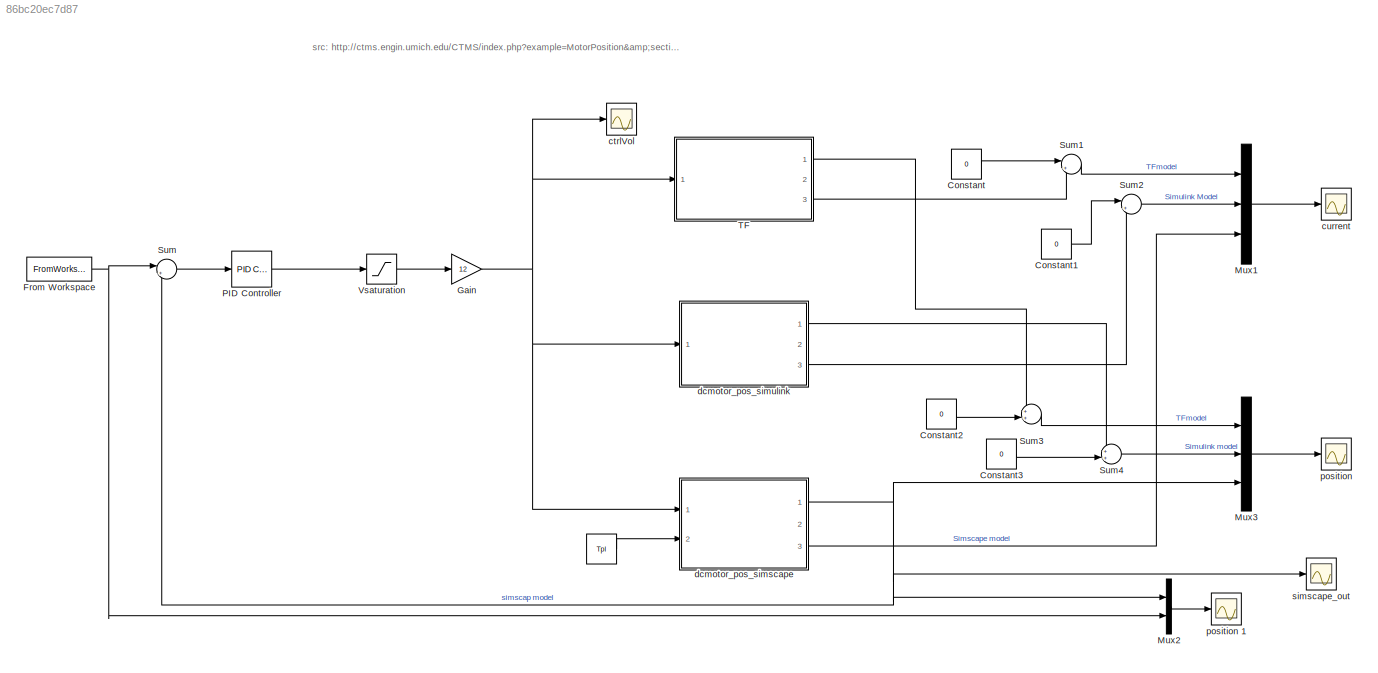
MODEL slx_86bc20ec7d87
KIND model
CONFIG AbsTol = auto
CONFIG EnableMultiTasking = off
CONFIG FixedStep = auto
CONFIG MaxStep = auto
CONFIG MinStep = auto
CONFIG RelTol = 1e-3
CONFIG SampleTimeConstraint = Unconstrained
CONFIG Solver = VariableStepAuto
CONFIG SolverName = VariableStepAuto
CONFIG StartTime = 0.0
CONFIG StopTime = 1
BLOCK [Constant]  
  Value = Tpl
BLOCK [Constant] Constant
  Value = 0
BLOCK [Constant] Constant1
  Value = 0
BLOCK [Constant] Constant2
  Value = 0
BLOCK [Constant] Constant3
  Value = 0
BLOCK [FromWorkspace] From Workspace
  OutDataTypeStr = double
  OutputAfterFinalValue = Holding final value
  SampleTime = 0
  VariableName = sim_in
  ZeroCross = on
BLOCK [Gain] Gain
  Gain = 12
  OutDataTypeStr = Inherit: Inherit via internal rule
  ParamDataTypeStr = Inherit: Inherit via internal rule
  SaturateOnIntegerOverflow = off
BLOCK [Mux] Mux1
  DisplayOption = bar
  Inputs = 3
  Ports = [3, 1]
BLOCK [Mux] Mux2
  DisplayOption = bar
  Inputs = 2
  Ports = [2, 1]
BLOCK [Mux] Mux3
  DisplayOption = bar
  Inputs = 3
  Ports = [3, 1]
BLOCK [Reference] PID Controller  REF=simulink/Continuous/PID Controller
  Ports = [1, 1]
  SourceBlock = simulink/Continuous/PID Controller
  SourceProductBaseCode = SL
  SourceProductName = Simulink
  SourceType = PID 1dof
BLOCK [Sum] Sum
  IconShape = round
  InputSameDT = off
  Inputs = |+-
  OutDataTypeStr = Inherit: Inherit via internal rule
  Ports = [2, 1]
  SaturateOnIntegerOverflow = off
BLOCK [Sum] Sum1
  IconShape = round
  InputSameDT = off
  Inputs = |++
  OutDataTypeStr = Inherit: Inherit via internal rule
  Ports = [2, 1]
  SaturateOnIntegerOverflow = off
BLOCK [Sum] Sum2
  IconShape = round
  InputSameDT = off
  Inputs = |++
  OutDataTypeStr = Inherit: Inherit via internal rule
  Ports = [2, 1]
  SaturateOnIntegerOverflow = off
BLOCK [Sum] Sum3
  IconShape = round
  InputSameDT = off
  Inputs = ++|
  OutDataTypeStr = Inherit: Inherit via internal rule
  Ports = [2, 1]
  SaturateOnIntegerOverflow = off
BLOCK [Sum] Sum4
  IconShape = round
  InputSameDT = off
  Inputs = ++|
  OutDataTypeStr = Inherit: Inherit via internal rule
  Ports = [2, 1]
  SaturateOnIntegerOverflow = off
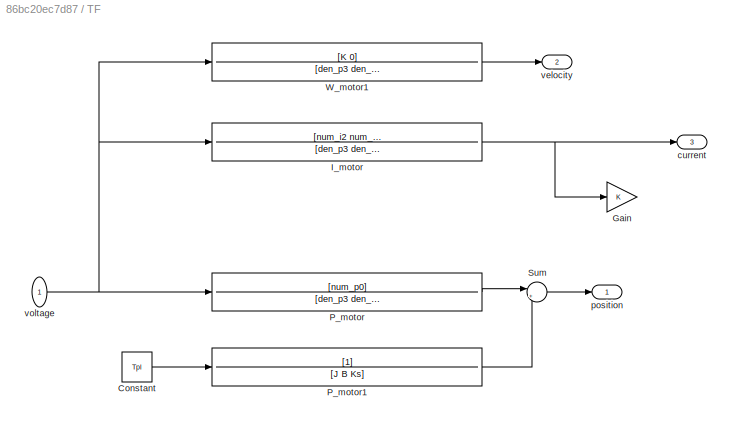
BLOCK [SubSystem] TF
  Ports = [1, 3]
  RequestExecContextInheritance = off
  Variant = off
BLOCK [Constant] TF/Constant
  Value = Tpl
BLOCK [Gain] TF/Gain
  Gain = K
  OutDataTypeStr = Inherit: Inherit via internal rule
  ParamDataTypeStr = Inherit: Inherit via internal rule
  SaturateOnIntegerOverflow = off
BLOCK [TransferFcn] TF/I_motor
  Denominator = [den_p3  den_p2  den_p1  den_p0]
  Numerator = [num_i2  num_i1  num_i0]
BLOCK [TransferFcn] TF/P_motor
  Denominator = [den_p3  den_p2  den_p1  den_p0]
  Numerator = [num_p0]
BLOCK [TransferFcn] TF/P_motor1
  Denominator = [J B Ks]
BLOCK [Sum] TF/Sum
  IconShape = round
  InputSameDT = off
  Inputs = |+-
  OutDataTypeStr = Inherit: Inherit via internal rule
  Ports = [2, 1]
  SaturateOnIntegerOverflow = off
BLOCK [TransferFcn] TF/W_motor1
  Denominator = [den_p3  den_p2  den_p1  den_p0]
  Numerator = [K 0]
BLOCK [Outport] TF/current
  IconDisplay = Port number
  Port = 3
BLOCK [Outport] TF/position 
  IconDisplay = Port number
BLOCK [Outport] TF/velocity
  IconDisplay = Port number
  Port = 2
BLOCK [Inport] TF/voltage
  IconDisplay = Port number
BLOCK [Saturate] Vsaturation
  InputPortMap = u0
  LowerLimit = 0
  Ports = [1, 1]
  UpperLimit = 1
BLOCK [Scope] ctrlVol
  NumInputPorts = 1
  Ports = [1]
  ScopeSpecificationString = Simulink.scopes.TimeScopeBlockCfg('CurrentConfiguration', extmgr.ConfigurationSet(extmgr.Configuration('Core','General UI',true),extmgr.Configuration('Core','Source UI',true),extmgr.Configuration('Sources','WiredSimulink',true,'DataLoggingVariableName','ctrl_vol','DataLogging',true,'DataLoggingSaveFormat','StructureWithTime'),extmgr.Configuration('Visuals','Time Domain',true,'SerializedDisplays',{...<+1523ch>
BLOCK [Scope] current 
  NumInputPorts = 1
  Ports = [1]
  ScopeSpecificationString = Simulink.scopes.TimeScopeBlockCfg('CurrentConfiguration', extmgr.ConfigurationSet(extmgr.Configuration('Core','General UI',true),extmgr.Configuration('Core','Source UI',true),extmgr.Configuration('Sources','WiredSimulink',true,'DataLoggingVariableName','ScopeData2'),extmgr.Configuration('Visuals','Time Domain',true,'SerializedDisplays',{struct('MinYLimReal','-0.19992','MaxYLimReal','1.79927','YLab...<+1749ch>
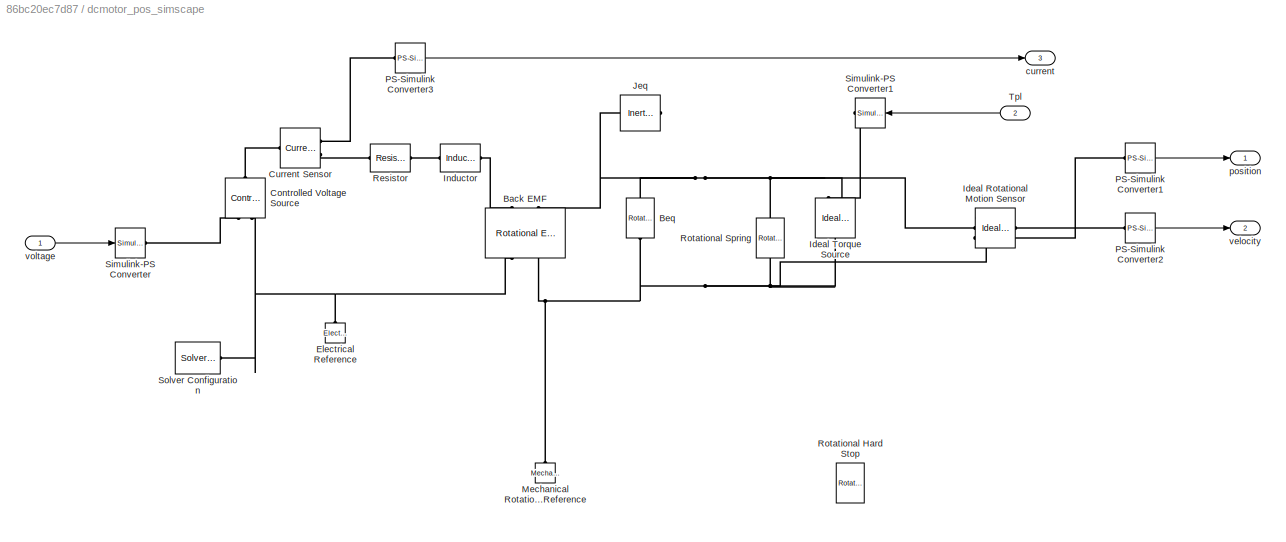
BLOCK [SubSystem] dcmotor_pos_simscape 
  Ports = [2, 3]
  RequestExecContextInheritance = off
  Variant = off
BLOCK [Reference] dcmotor_pos_simscape /Back EMF  REF=fl_lib/Electrical/Electrical Elements/Rotational
Electromechanical
Converter
  Ports = [0, 0, 0, 0, 0, 2, 2]
  SourceBlock = fl_lib/Electrical/Electrical Elements/Rotational\nElectromechanical\nConverter
  SourceProductBaseCode = SS
  SourceProductName = Simscape
  SourceType = Rotational\nElectromechanical\nConverter
BLOCK [Reference] dcmotor_pos_simscape /Beq  REF=fl_lib/Mechanical/Rotational Elements/Rotational Damper
  Ports = [0, 0, 0, 0, 0, 1, 1]
  SourceBlock = fl_lib/Mechanical/Rotational Elements/Rotational Damper
  SourceProductBaseCode = SS
  SourceProductName = Simscape
  SourceType = Rotational Damper
BLOCK [Reference] dcmotor_pos_simscape /Controlled Voltage Source  REF=fl_lib/Electrical/Electrical Sources/Controlled Voltage
Source
  Ports = [0, 0, 0, 0, 0, 1, 2]
  SourceBlock = fl_lib/Electrical/Electrical Sources/Controlled Voltage\nSource
  SourceProductBaseCode = SS
  SourceProductName = Simscape
  SourceType = Controlled Voltage\nSource
BLOCK [Reference] dcmotor_pos_simscape /Current Sensor  REF=fl_lib/Electrical/Electrical Sensors/Current Sensor
  Ports = [0, 0, 0, 0, 0, 1, 2]
  SourceBlock = fl_lib/Electrical/Electrical Sensors/Current Sensor
  SourceProductBaseCode = SS
  SourceProductName = Simscape
  SourceType = Current Sensor
BLOCK [Reference] dcmotor_pos_simscape /Electrical Reference  REF=fl_lib/Electrical/Electrical Elements/Electrical Reference
  Ports = [0, 0, 0, 0, 0, 1]
  SourceBlock = fl_lib/Electrical/Electrical Elements/Electrical Reference
  SourceProductBaseCode = SS
  SourceProductName = Simscape
  SourceType = Electrical Reference
BLOCK [Reference] dcmotor_pos_simscape /Ideal Rotational Motion Sensor  REF=fl_lib/Mechanical/Mechanical Sensors/Ideal Rotational
Motion Sensor
  Ports = [0, 0, 0, 0, 0, 1, 3]
  SourceBlock = fl_lib/Mechanical/Mechanical Sensors/Ideal Rotational\nMotion Sensor
  SourceProductBaseCode = SS
  SourceProductName = Simscape
  SourceType = Ideal Rotational\nMotion Sensor
BLOCK [Reference] dcmotor_pos_simscape /Ideal Torque Source  REF=fl_lib/Mechanical/Mechanical Sources/Ideal Torque Source
  Ports = [0, 0, 0, 0, 0, 1, 2]
  SourceBlock = fl_lib/Mechanical/Mechanical Sources/Ideal Torque Source
  SourceProductBaseCode = SS
  SourceProductName = Simscape
  SourceType = Ideal Torque Source
BLOCK [Reference] dcmotor_pos_simscape /Inductor  REF=fl_lib/Electrical/Electrical Elements/Inductor
  Ports = [0, 0, 0, 0, 0, 1, 1]
  SourceBlock = fl_lib/Electrical/Electrical Elements/Inductor
  SourceProductBaseCode = SS
  SourceProductName = Simscape
  SourceType = Inductor
BLOCK [Reference] dcmotor_pos_simscape /Jeq  REF=fl_lib/Mechanical/Rotational Elements/Inertia
  Ports = [0, 0, 0, 0, 0, 1]
  SourceBlock = fl_lib/Mechanical/Rotational Elements/Inertia
  SourceProductBaseCode = SS
  SourceProductName = Simscape
  SourceType = Inertia
BLOCK [Reference] dcmotor_pos_simscape /Mechanical Rotational Reference  REF=fl_lib/Mechanical/Rotational Elements/Mechanical
Rotational Reference
  Ports = [0, 0, 0, 0, 0, 1]
  SourceBlock = fl_lib/Mechanical/Rotational Elements/Mechanical\nRotational Reference
  SourceProductBaseCode = SS
  SourceProductName = Simscape
  SourceType = Mechanical\nRotational Reference
BLOCK [Reference] dcmotor_pos_simscape /PS-Simulink Converter1  REF=nesl_utility/PS-Simulink
Converter
  Ports = [0, 1, 0, 0, 0, 1]
  SourceBlock = nesl_utility/PS-Simulink\nConverter
  SourceProductBaseCode = SS
  SourceProductName = Simscape
  SourceType = PS-Simulink\nConverter
BLOCK [Reference] dcmotor_pos_simscape /PS-Simulink Converter2  REF=nesl_utility/PS-Simulink
Converter
  Ports = [0, 1, 0, 0, 0, 1]
  SourceBlock = nesl_utility/PS-Simulink\nConverter
  SourceProductBaseCode = SS
  SourceProductName = Simscape
  SourceType = PS-Simulink\nConverter
BLOCK [Reference] dcmotor_pos_simscape /PS-Simulink Converter3  REF=nesl_utility/PS-Simulink
Converter
  Ports = [0, 1, 0, 0, 0, 1]
  SourceBlock = nesl_utility/PS-Simulink\nConverter
  SourceProductBaseCode = SS
  SourceProductName = Simscape
  SourceType = PS-Simulink\nConverter
BLOCK [Reference] dcmotor_pos_simscape /Resistor  REF=fl_lib/Electrical/Electrical Elements/Resistor
  Ports = [0, 0, 0, 0, 0, 1, 1]
  SourceBlock = fl_lib/Electrical/Electrical Elements/Resistor
  SourceProductBaseCode = SS
  SourceProductName = Simscape
  SourceType = Resistor
BLOCK [Reference] dcmotor_pos_simscape /Rotational Hard Stop  REF=fl_lib/Mechanical/Rotational Elements/Rotational Hard Stop
  Ports = [0, 0, 0, 0, 0, 1, 1]
  SourceBlock = fl_lib/Mechanical/Rotational Elements/Rotational Hard Stop
  SourceProductBaseCode = SS
  SourceProductName = Simscape
  SourceType = Rotational Hard Stop
BLOCK [Reference] dcmotor_pos_simscape /Rotational Spring  REF=fl_lib/Mechanical/Rotational Elements/Rotational Spring
  Ports = [0, 0, 0, 0, 0, 1, 1]
  SourceBlock = fl_lib/Mechanical/Rotational Elements/Rotational Spring
  SourceProductBaseCode = SS
  SourceProductName = Simscape
  SourceType = Rotational Spring
BLOCK [Reference] dcmotor_pos_simscape /Simulink-PS Converter  REF=nesl_utility/Simulink-PS
Converter
  Ports = [1, 0, 0, 0, 0, 0, 1]
  SourceBlock = nesl_utility/Simulink-PS\nConverter
  SourceProductBaseCode = SS
  SourceProductName = Simscape
  SourceType = Simulink-PS\nConverter
BLOCK [Reference] dcmotor_pos_simscape /Simulink-PS Converter1  REF=nesl_utility/Simulink-PS
Converter
  Ports = [1, 0, 0, 0, 0, 0, 1]
  SourceBlock = nesl_utility/Simulink-PS\nConverter
  SourceProductBaseCode = SS
  SourceProductName = Simscape
  SourceType = Simulink-PS\nConverter
BLOCK [Reference] dcmotor_pos_simscape /Solver Configuration  REF=nesl_utility/Solver
Configuration
  Ports = [0, 0, 0, 0, 0, 0, 1]
  SourceBlock = nesl_utility/Solver\nConfiguration
  SourceProductBaseCode = SS
  SourceProductName = Simscape
  SourceType = Solver\nConfiguration
BLOCK [Inport] dcmotor_pos_simscape /Tpl
  IconDisplay = Port number
  Port = 2
BLOCK [Outport] dcmotor_pos_simscape /current
  IconDisplay = Port number
  Port = 3
BLOCK [Outport] dcmotor_pos_simscape /position
  IconDisplay = Port number
BLOCK [Outport] dcmotor_pos_simscape /velocity
  IconDisplay = Port number
  Port = 2
BLOCK [Inport] dcmotor_pos_simscape /voltage
  IconDisplay = Port number
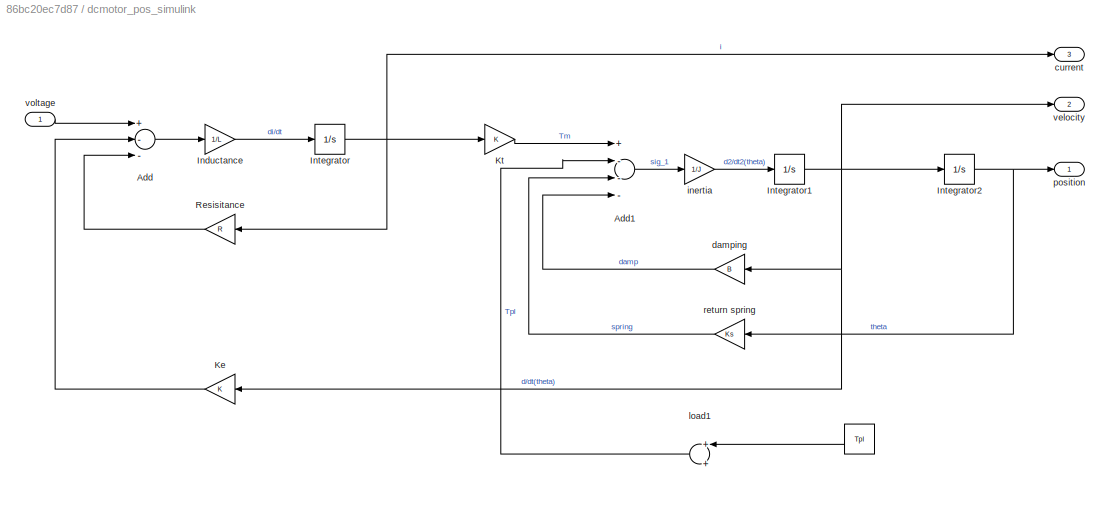
BLOCK [SubSystem] dcmotor_pos_simulink
  Ports = [1, 3]
  RequestExecContextInheritance = off
  Variant = off
BLOCK [Constant] dcmotor_pos_simulink/ 
  Value = Tpl
BLOCK [Sum] dcmotor_pos_simulink/Add
  InputSameDT = off
  Inputs = +--
  OutDataTypeStr = Inherit: Inherit via internal rule
  Ports = [3, 1]
  SaturateOnIntegerOverflow = off
BLOCK [Sum] dcmotor_pos_simulink/Add1
  InputSameDT = off
  Inputs = +---
  OutDataTypeStr = Inherit: Inherit via internal rule
  Ports = [4, 1]
  SaturateOnIntegerOverflow = off
BLOCK [Gain] dcmotor_pos_simulink/Inductance 
  Gain = 1/L
  OutDataTypeStr = Inherit: Inherit via internal rule
  ParamDataTypeStr = Inherit: Inherit via internal rule
  SaturateOnIntegerOverflow = off
BLOCK [Integrator] dcmotor_pos_simulink/Integrator
  Ports = [1, 1]
BLOCK [Integrator] dcmotor_pos_simulink/Integrator1
  Ports = [1, 1]
BLOCK [Integrator] dcmotor_pos_simulink/Integrator2
  Ports = [1, 1]
BLOCK [Gain] dcmotor_pos_simulink/Ke
  Gain = K
  OutDataTypeStr = Inherit: Inherit via internal rule
  ParamDataTypeStr = Inherit: Inherit via internal rule
  SaturateOnIntegerOverflow = off
BLOCK [Gain] dcmotor_pos_simulink/Kt
  Gain = K
  OutDataTypeStr = Inherit: Inherit via internal rule
  ParamDataTypeStr = Inherit: Inherit via internal rule
  SaturateOnIntegerOverflow = off
BLOCK [Gain] dcmotor_pos_simulink/Resisitance
  Gain = R
  OutDataTypeStr = Inherit: Inherit via internal rule
  ParamDataTypeStr = Inherit: Inherit via internal rule
  SaturateOnIntegerOverflow = off
BLOCK [Outport] dcmotor_pos_simulink/current
  IconDisplay = Port number
  Port = 3
BLOCK [Gain] dcmotor_pos_simulink/damping
  Gain = B
  OutDataTypeStr = Inherit: Inherit via internal rule
  ParamDataTypeStr = Inherit: Inherit via internal rule
  SaturateOnIntegerOverflow = off
BLOCK [Gain] dcmotor_pos_simulink/inertia
  Gain = 1/J
  OutDataTypeStr = Inherit: Inherit via internal rule
  ParamDataTypeStr = Inherit: Inherit via internal rule
  SaturateOnIntegerOverflow = off
BLOCK [Sum] dcmotor_pos_simulink/load1
  InputSameDT = off
  OutDataTypeStr = Inherit: Inherit via internal rule
  Ports = [2, 1]
  SaturateOnIntegerOverflow = off
BLOCK [Outport] dcmotor_pos_simulink/position
  IconDisplay = Port number
BLOCK [Gain] dcmotor_pos_simulink/return spring
  Gain = Ks
  OutDataTypeStr = Inherit: Inherit via internal rule
  ParamDataTypeStr = Inherit: Inherit via internal rule
  SaturateOnIntegerOverflow = off
BLOCK [Outport] dcmotor_pos_simulink/velocity
  IconDisplay = Port number
  Port = 2
BLOCK [Inport] dcmotor_pos_simulink/voltage
  IconDisplay = Port number
BLOCK [Scope] position 
  NumInputPorts = 1
  Ports = [1]
  ScopeSpecificationString = Simulink.scopes.TimeScopeBlockCfg('CurrentConfiguration', extmgr.ConfigurationSet(extmgr.Configuration('Core','General UI',true),extmgr.Configuration('Core','Source UI',true),extmgr.Configuration('Sources','WiredSimulink',true,'DataLoggingVariableName','ScopeData1'),extmgr.Configuration('Visuals','Time Domain',true,'SerializedDisplays',{struct('MinYLimReal','-0.31709','MaxYLimReal','2.85378','YLab...<+1750ch>
BLOCK [Scope] position 1
  NumInputPorts = 1
  Ports = [1]
  ScopeSpecificationString = Simulink.scopes.TimeScopeBlockCfg('CurrentConfiguration', extmgr.ConfigurationSet(extmgr.Configuration('Core','General UI',true),extmgr.Configuration('Core','Source UI',true),extmgr.Configuration('Sources','WiredSimulink',true,'DataLoggingVariableName','ScopeData1'),extmgr.Configuration('Visuals','Time Domain',true,'SerializedDisplays',{struct('MinYLimReal','-0.31709','MaxYLimReal','2.85378','YLab...<+1814ch>
BLOCK [Scope] simscape_out
  NumInputPorts = 1
  Ports = [1]
  ScopeSpecificationString = Simulink.scopes.TimeScopeBlockCfg('CurrentConfiguration', extmgr.ConfigurationSet(extmgr.Configuration('Core','General UI',true),extmgr.Configuration('Core','Source UI',true),extmgr.Configuration('Sources','WiredSimulink',true,'DataLoggingVariableName','simscape_out','DataLogging',true,'DataLoggingSaveFormat','StructureWithTime'),extmgr.Configuration('Visuals','Time Domain',true,'SerializedDisplay...<+1815ch>
ANNOTATION (root): src: http://ctms.engin.umich.edu/CTMS/index.php?example=MotorPosition&section=SimulinkModeling
LINE  :1 -> dcmotor_pos_simscape :2
LINE Constant1:1 -> Sum2:1
LINE Constant2:1 -> Sum3:2
LINE Constant3:1 -> Sum4:2
LINE Constant:1 -> Sum1:1
NET From Workspace:1 -> Mux2:2, Sum:1
NET Gain:1 -> TF:1, ctrlVol:1, dcmotor_pos_simscape :1, dcmotor_pos_simulink:1
LINE Mux1:1 -> current :1
LINE Mux2:1 -> position 1:1
LINE Mux3:1 -> position :1
LINE PID Controller:1 -> Vsaturation:1
LINE Sum1:1 -> Mux1:1
LINE Sum2:1 -> Mux1:2
LINE Sum3:1 -> Mux3:1
LINE Sum4:1 -> Mux3:2
LINE Sum:1 -> PID Controller:1
LINE TF/Constant:1 -> TF/P_motor1:1
NET TF/I_motor:1 -> TF/Gain:1, TF/current:1
LINE TF/P_motor1:1 -> TF/Sum:2
LINE TF/P_motor:1 -> TF/Sum:1
LINE TF/Sum:1 -> TF/position :1
LINE TF/W_motor1:1 -> TF/velocity:1
NET TF/voltage:1 -> TF/I_motor:1, TF/P_motor:1, TF/W_motor1:1
LINE TF:1 -> Sum3:1
LINE TF:3 -> Sum1:2
LINE Vsaturation:1 -> Gain:1
LINE dcmotor_pos_simscape /PS-Simulink Converter1:1 -> dcmotor_pos_simscape /position:1
LINE dcmotor_pos_simscape /PS-Simulink Converter2:1 -> dcmotor_pos_simscape /velocity:1
LINE dcmotor_pos_simscape /PS-Simulink Converter3:1 -> dcmotor_pos_simscape /current:1
LINE dcmotor_pos_simscape /Tpl:1 -> dcmotor_pos_simscape /Simulink-PS Converter1:1
LINE dcmotor_pos_simscape /voltage:1 -> dcmotor_pos_simscape /Simulink-PS Converter:1
NET dcmotor_pos_simscape :1 -> Mux2:1, Mux3:3, Sum:2, simscape_out:1
LINE dcmotor_pos_simscape :3 -> Mux1:3
LINE dcmotor_pos_simulink/ :1 -> dcmotor_pos_simulink/load1:1
LINE dcmotor_pos_simulink/Add1:1 -> dcmotor_pos_simulink/inertia:1
LINE dcmotor_pos_simulink/Add:1 -> dcmotor_pos_simulink/Inductance :1
LINE dcmotor_pos_simulink/Inductance :1 -> dcmotor_pos_simulink/Integrator:1
NET dcmotor_pos_simulink/Integrator1:1 -> dcmotor_pos_simulink/Integrator2:1, dcmotor_pos_simulink/Ke:1, dcmotor_pos_simulink/damping:1, dcmotor_pos_simulink/velocity:1
NET dcmotor_pos_simulink/Integrator2:1 -> dcmotor_pos_simulink/position:1, dcmotor_pos_simulink/return spring:1
NET dcmotor_pos_simulink/Integrator:1 -> dcmotor_pos_simulink/Kt:1, dcmotor_pos_simulink/Resisitance:1, dcmotor_pos_simulink/current:1
LINE dcmotor_pos_simulink/Ke:1 -> dcmotor_pos_simulink/Add:2
LINE dcmotor_pos_simulink/Kt:1 -> dcmotor_pos_simulink/Add1:1
LINE dcmotor_pos_simulink/Resisitance:1 -> dcmotor_pos_simulink/Add:3
LINE dcmotor_pos_simulink/damping:1 -> dcmotor_pos_simulink/Add1:4
LINE dcmotor_pos_simulink/inertia:1 -> dcmotor_pos_simulink/Integrator1:1
LINE dcmotor_pos_simulink/load1:1 -> dcmotor_pos_simulink/Add1:2
LINE dcmotor_pos_simulink/return spring:1 -> dcmotor_pos_simulink/Add1:3
LINE dcmotor_pos_simulink/voltage:1 -> dcmotor_pos_simulink/Add:1
LINE dcmotor_pos_simulink:1 -> Sum4:1
LINE dcmotor_pos_simulink:3 -> Sum2:2
PLINE dcmotor_pos_simscape /Back EMF:LConn1 -- dcmotor_pos_simscape /Inductor:RConn1
PNET net1: dcmotor_pos_simscape /Back EMF:LConn2 -- dcmotor_pos_simscape /Beq:LConn1 -- dcmotor_pos_simscape /Ideal Rotational Motion Sensor:LConn1 -- dcmotor_pos_simscape /Ideal Torque Source:RConn2 -- dcmotor_pos_simscape /Jeq:LConn1 -- dcmotor_pos_simscape /Rotational Spring:RConn1
PNET net2: dcmotor_pos_simscape /Back EMF:RConn1 -- dcmotor_pos_simscape /Controlled Voltage Source:RConn2 -- dcmotor_pos_simscape /Electrical Reference:LConn1 -- dcmotor_pos_simscape /Solver Configuration:RConn1
PNET net3: dcmotor_pos_simscape /Back EMF:RConn2 -- dcmotor_pos_simscape /Beq:RConn1 -- dcmotor_pos_simscape /Ideal Rotational Motion Sensor:RConn1 -- dcmotor_pos_simscape /Ideal Torque Source:LConn1 -- dcmotor_pos_simscape /Mechanical Rotational Reference:LConn1 -- dcmotor_pos_simscape /Rotational Spring:LConn1
PLINE dcmotor_pos_simscape /Controlled Voltage Source:LConn1 -- dcmotor_pos_simscape /Current Sensor:LConn1
PLINE dcmotor_pos_simscape /Controlled Voltage Source:RConn1 -- dcmotor_pos_simscape /Simulink-PS Converter:RConn1
PLINE dcmotor_pos_simscape /Current Sensor:RConn1 -- dcmotor_pos_simscape /PS-Simulink Converter3:LConn1
PLINE dcmotor_pos_simscape /Current Sensor:RConn2 -- dcmotor_pos_simscape /Resistor:LConn1
PLINE dcmotor_pos_simscape /Ideal Rotational Motion Sensor:RConn2 -- dcmotor_pos_simscape /PS-Simulink Converter2:LConn1
PLINE dcmotor_pos_simscape /Ideal Rotational Motion Sensor:RConn3 -- dcmotor_pos_simscape /PS-Simulink Converter1:LConn1
PLINE dcmotor_pos_simscape /Ideal Torque Source:RConn1 -- dcmotor_pos_simscape /Simulink-PS Converter1:RConn1
PLINE dcmotor_pos_simscape /Inductor:LConn1 -- dcmotor_pos_simscape /Resistor:RConn1
note: NET lines group one-source signal fan-out (src -> all destinations, sorted); 1:1 wires keep LINE; PNET lines group multi-terminal physical nets as a canonical sorted terminal list (undirected conserving connections); 2-terminal nets keep the pairwise PLINE form
